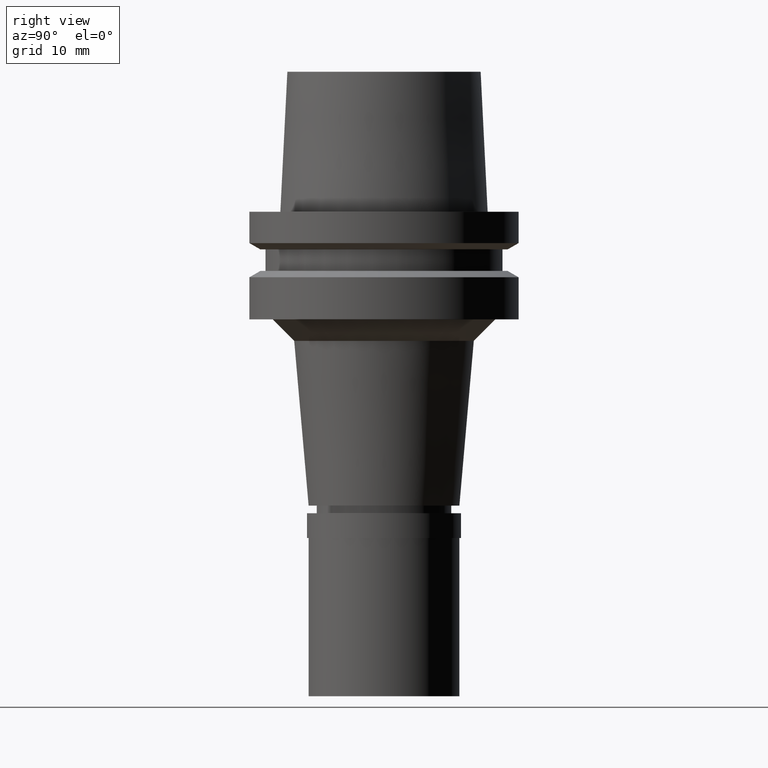
[diagram: clean part render]
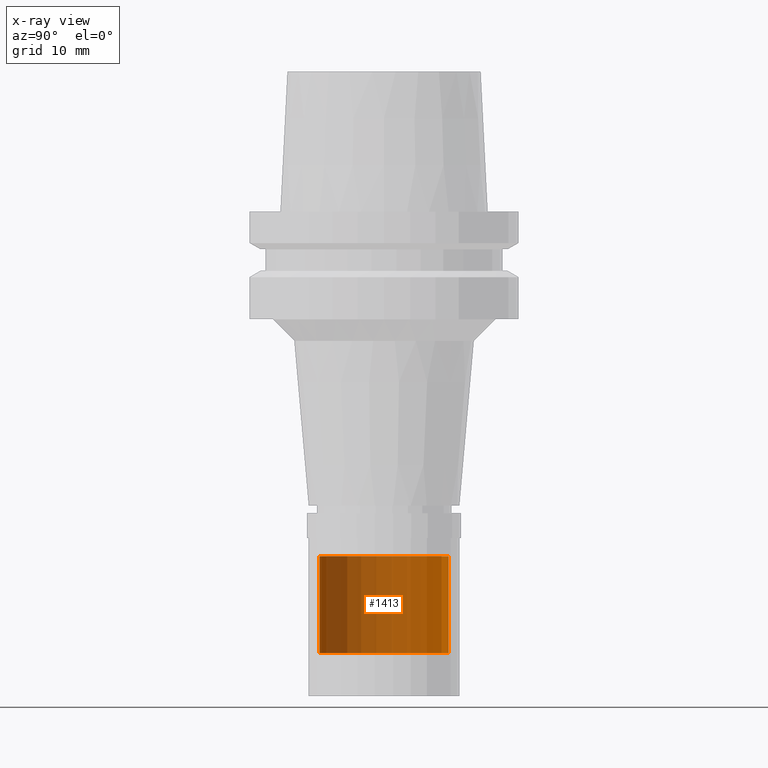
[diagram: x-ray — body ghosted, one internal face saturated and labeled with its STEP entity id]
A machine part, right view, then the same camera in x-ray: the body is ghosted and one INTERNAL B-rep face — a face not visible from any outside direction — is saturated and labeled: STEP entity #1413.
In plain terms, the highlighted cylindrical surface (partial cylindrical patch) has radius 6 mm, axis along (0, 0, 1).
Its self-contained STEP definition (entity closure, byte-faithful):
#35 = CARTESIAN_POINT ( 'NONE',  ( 0.0000000000000000000, -6.000000000000000000, -32.00000000000000000 ) ) ;
#56 = CIRCLE ( 'NONE', #798, 6.000000000000000000 ) ;
#133 = EDGE_CURVE ( 'NONE', #2502, #1693, #1907, .T. ) ;
#179 = VECTOR ( 'NONE', #2080, 1000.000000000000000 ) ;
#204 = EDGE_CURVE ( 'NONE', #1693, #1002, #56, .T. ) ;
#278 = DIRECTION ( 'NONE',  ( 0.0000000000000000000, 0.0000000000000000000, -1.000000000000000000 ) ) ;
#327 = VERTEX_POINT ( 'NONE', #2164 ) ;
#428 = ORIENTED_EDGE ( 'NONE', *, *, #133, .T. ) ;
#437 = DIRECTION ( 'NONE',  ( 0.0000000000000000000, 1.000000000000000000, 0.0000000000000000000 ) ) ;
#464 = ORIENTED_EDGE ( 'NONE', *, *, #204, .T. ) ;
#493 = DIRECTION ( 'NONE',  ( 0.0000000000000000000, -1.000000000000000000, 0.0000000000000000000 ) ) ;
#674 = FACE_OUTER_BOUND ( 'NONE', #1281, .T. ) ;
#731 = CARTESIAN_POINT ( 'NONE',  ( 0.0000000000000000000, 0.0000000000000000000, -32.00000000000000000 ) ) ;
#758 = AXIS2_PLACEMENT_3D ( 'NONE', #731, #278, #493 ) ;
#765 = CARTESIAN_POINT ( 'NONE',  ( 0.0000000000000000000, 6.000000000000000000, -41.00000000000000000 ) ) ;
#798 = AXIS2_PLACEMENT_3D ( 'NONE', #2570, #938, #2627 ) ;
#866 = CARTESIAN_POINT ( 'NONE',  ( 0.0000000000000000000, 6.000000000000000000, -32.00000000000000000 ) ) ;
#938 = DIRECTION ( 'NONE',  ( 0.0000000000000000000, 0.0000000000000000000, 1.000000000000000000 ) ) ;
#1002 = VERTEX_POINT ( 'NONE', #1627 ) ;
#1014 = VECTOR ( 'NONE', #2075, 1000.000000000000000 ) ;
#1184 = EDGE_CURVE ( 'NONE', #327, #2502, #2500, .T. ) ;
#1201 = ORIENTED_EDGE ( 'NONE', *, *, #1897, .F. ) ;
#1281 = EDGE_LOOP ( 'NONE', ( #464, #1201, #1821, #428 ) ) ;
#1284 = DIRECTION ( 'NONE',  ( 0.0000000000000000000, 0.0000000000000000000, 1.000000000000000000 ) ) ;
#1413 = ADVANCED_FACE ( 'NONE', ( #674 ), #2513, .T. ) ;
#1457 = CARTESIAN_POINT ( 'NONE',  ( 0.0000000000000000000, 0.0000000000000000000, -43.70000000000000284 ) ) ;
#1627 = CARTESIAN_POINT ( 'NONE',  ( 0.0000000000000000000, -6.000000000000000000, -41.00000000000000000 ) ) ;
#1693 = VERTEX_POINT ( 'NONE', #765 ) ;
#1821 = ORIENTED_EDGE ( 'NONE', *, *, #1184, .T. ) ;
#1825 = CARTESIAN_POINT ( 'NONE',  ( 0.0000000000000000000, 6.000000000000000000, -32.00000000000000000 ) ) ;
#1897 = EDGE_CURVE ( 'NONE', #327, #1002, #2321, .T. ) ;
#1907 = LINE ( 'NONE', #866, #179 ) ;
#2004 = AXIS2_PLACEMENT_3D ( 'NONE', #1457, #1284, #437 ) ;
#2075 = DIRECTION ( 'NONE',  ( 0.0000000000000000000, 0.0000000000000000000, -1.000000000000000000 ) ) ;
#2080 = DIRECTION ( 'NONE',  ( 0.0000000000000000000, 0.0000000000000000000, -1.000000000000000000 ) ) ;
#2164 = CARTESIAN_POINT ( 'NONE',  ( 0.0000000000000000000, -6.000000000000000000, -32.00000000000000000 ) ) ;
#2321 = LINE ( 'NONE', #35, #1014 ) ;
#2500 = CIRCLE ( 'NONE', #758, 6.000000000000000000 ) ;
#2502 = VERTEX_POINT ( 'NONE', #1825 ) ;
#2513 = CYLINDRICAL_SURFACE ( 'NONE', #2004, 6.000000000000000000 ) ;
#2570 = CARTESIAN_POINT ( 'NONE',  ( 0.0000000000000000000, 0.0000000000000000000, -41.00000000000000000 ) ) ;
#2627 = DIRECTION ( 'NONE',  ( 0.0000000000000000000, 1.000000000000000000, 0.0000000000000000000 ) ) ;